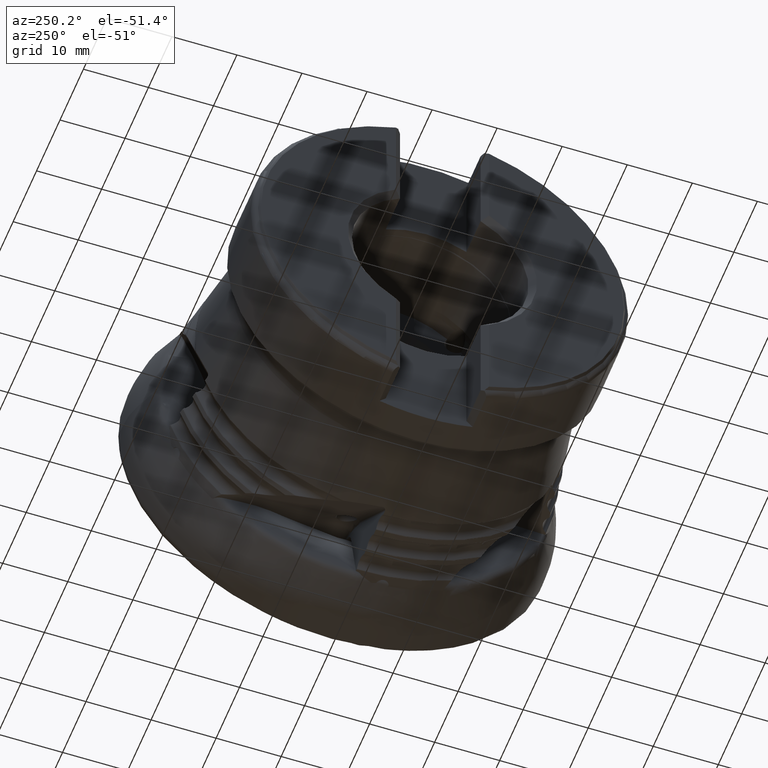
[diagram: clean part render]
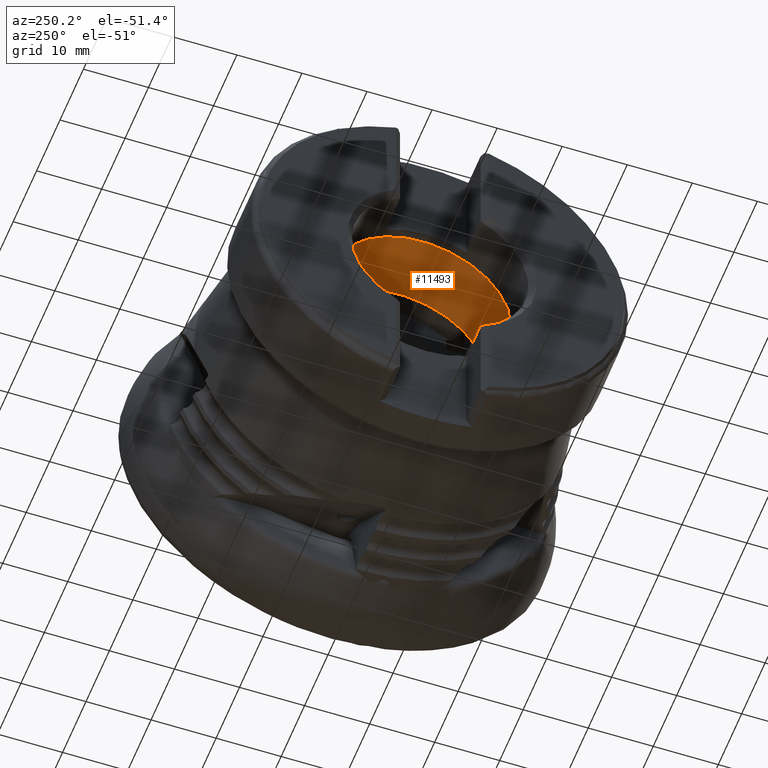
[diagram: same view with one face highlighted and labeled with its STEP entity id]
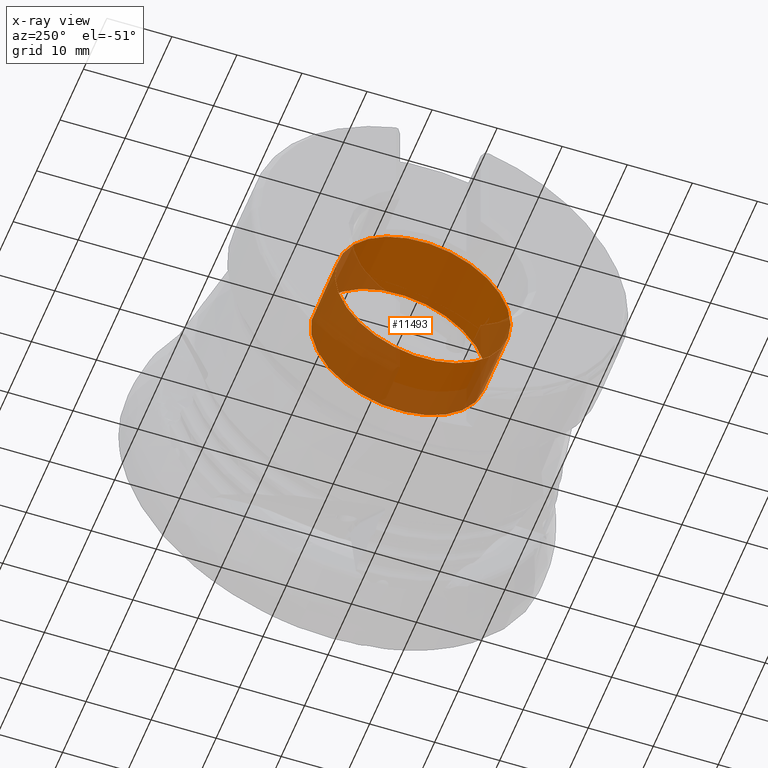
[diagram: x-ray of the same camera — body ghosted, the highlighted face saturated]
A machine part, auxiliary view. The second image highlights one B-rep face of the part: STEP entity #11493.
The next image is the same camera in x-ray: the body ghosted, the highlighted face saturated — about 51% of this face is hidden behind the body in this view.
In plain terms, the highlighted cylindrical surface (bore or boss wall) has radius 13.5 mm, axis along (-1, -0, -0).
Its self-contained STEP definition (entity closure, byte-faithful):
#343 = DIRECTION ( 'NONE',  ( -1.000000000000000000, -8.918127540765139200E-019, 0.0000000000000000000 ) ) ;
#736 = DIRECTION ( 'NONE',  ( 0.0000000000000000000, -1.000000000000000000, 0.0000000000000000000 ) ) ;
#772 = CARTESIAN_POINT ( 'NONE',  ( -30.19372220480102000, 5.860457060852806600, 12.16162172729856600 ) ) ;
#906 = EDGE_CURVE ( 'NONE', #11417, #4085, #8367, .T. ) ;
#941 = VERTEX_POINT ( 'NONE', #9106 ) ;
#957 = EDGE_LOOP ( 'NONE', ( #2441 ) ) ;
#1155 = CARTESIAN_POINT ( 'NONE',  ( -30.21015623862490800, -9.887653744841088600, 9.192007366032889600 ) ) ;
#1407 = CARTESIAN_POINT ( 'NONE',  ( -30.19372220480102000, 2.407212538242411900, -13.28364888860468400 ) ) ;
#1442 = VERTEX_POINT ( 'NONE', #12554 ) ;
#2101 = CARTESIAN_POINT ( 'NONE',  ( -30.19372220480101300, -11.88963125229506400, -6.394268424491458300 ) ) ;
#2404 = CARTESIAN_POINT ( 'NONE',  ( -30.21024652609022000, 13.39037170536719800, -1.719677960842389300 ) ) ;
#2441 = ORIENTED_EDGE ( 'NONE', *, *, #7890, .F. ) ;
#2588 = DIRECTION ( 'NONE',  ( -1.000000000000000000, -0.0000000000000000000, -0.0000000000000000000 ) ) ;
#2903 = ORIENTED_EDGE ( 'NONE', *, *, #9368, .F. ) ;
#3510 = CARTESIAN_POINT ( 'NONE',  ( -30.19372220480102000, -11.75167477960347500, -6.644406660826201800 ) ) ;
#3581 = AXIS2_PLACEMENT_3D ( 'NONE', #5825, #13532, #6914 ) ;
#3661 = CARTESIAN_POINT ( 'NONE',  ( -30.19372220480102000, 2.687739032385168900, -13.22974145226554500 ) ) ;
#3692 = EDGE_LOOP ( 'NONE', ( #14071, #5840, #8688, #12606, #10035, #5234, #9245, #13024, #8100, #2903 ) ) ;
#3814 = DIRECTION ( 'NONE',  ( -1.000000000000000000, -8.918127540765139200E-019, 0.0000000000000000000 ) ) ;
#3831 = EDGE_CURVE ( 'NONE', #3843, #4085, #5087, .T. ) ;
#3843 = VERTEX_POINT ( 'NONE', #6683 ) ;
#4047 = EDGE_CURVE ( 'NONE', #6264, #12348, #11792, .T. ) ;
#4085 = VERTEX_POINT ( 'NONE', #11494 ) ;
#4467 = DIRECTION ( 'NONE',  ( -1.000000000000000000, -8.918127540765139200E-019, 0.0000000000000000000 ) ) ;
#4468 = CIRCLE ( 'NONE', #3581, 13.50000000000000000 ) ;
#4714 = CARTESIAN_POINT ( 'NONE',  ( -27.90525917703945800, 0.0000000000000000000, 0.0000000000000000000 ) ) ;
#4784 = FACE_OUTER_BOUND ( 'NONE', #957, .T. ) ;
#4789 = EDGE_CURVE ( 'NONE', #5907, #11464, #11052, .T. ) ;
#4843 = DIRECTION ( 'NONE',  ( -1.000000000000000000, -8.918127540765139200E-019, 0.0000000000000000000 ) ) ;
#5068 = AXIS2_PLACEMENT_3D ( 'NONE', #13930, #7305, #736 ) ;
#5087 = CIRCLE ( 'NONE', #10570, 13.50000000000000000 ) ;
#5137 = AXIS2_PLACEMENT_3D ( 'NONE', #11429, #4843, #12551 ) ;
#5234 = ORIENTED_EDGE ( 'NONE', *, *, #3831, .F. ) ;
#5364 = CARTESIAN_POINT ( 'NONE',  ( -30.21015623862492200, -11.79757154494960000, -6.563231036377470900 ) ) ;
#5566 = CARTESIAN_POINT ( 'NONE',  ( -30.19372220480102000, -9.755408765887031200, 9.331773669054262800 ) ) ;
#5729 = CARTESIAN_POINT ( 'NONE',  ( -30.19372220480103400, 13.37737041907370500, -1.815478083285987800 ) ) ;
#5825 = CARTESIAN_POINT ( 'NONE',  ( -30.19372220480102000, 2.106262707738703400E-017, 0.0000000000000000000 ) ) ;
#5840 = ORIENTED_EDGE ( 'NONE', *, *, #4047, .F. ) ;
#5907 = VERTEX_POINT ( 'NONE', #10880 ) ;
#6093 = CIRCLE ( 'NONE', #7181, 13.50000000000000000 ) ;
#6264 = VERTEX_POINT ( 'NONE', #11873 ) ;
#6594 = VERTEX_POINT ( 'NONE', #11527 ) ;
#6683 = CARTESIAN_POINT ( 'NONE',  ( -30.19372220480102000, 5.860457060852806600, 12.16162172729856600 ) ) ;
#6898 = CARTESIAN_POINT ( 'NONE',  ( -30.19372220480102000, 2.106262707738703400E-017, 0.0000000000000000000 ) ) ;
#6914 = DIRECTION ( 'NONE',  ( 0.0000000000000000000, 1.000000000000000000, 0.0000000000000000000 ) ) ;
#7181 = AXIS2_PLACEMENT_3D ( 'NONE', #6898, #343, #8022 ) ;
#7305 = DIRECTION ( 'NONE',  ( 1.000000000000000000, 8.918127540765139200E-019, -0.0000000000000000000 ) ) ;
#7354 = CARTESIAN_POINT ( 'NONE',  ( -30.21023832166520500, 5.773406591096591700, 12.20356971347760900 ) ) ;
#7890 = EDGE_CURVE ( 'NONE', #1442, #1442, #13336, .T. ) ;
#7927 = EDGE_CURVE ( 'NONE', #941, #3843, #10320, .T. ) ;
#7973 = CARTESIAN_POINT ( 'NONE',  ( -30.21023832166520900, 2.502294255271913400, -13.26641853997750300 ) ) ;
#7984 = CARTESIAN_POINT ( 'NONE',  ( -30.19372220480102000, -9.755408765887031200, 9.331773669054262800 ) ) ;
#8022 = DIRECTION ( 'NONE',  ( 0.0000000000000000000, 1.000000000000000000, 8.881784197001252300E-016 ) ) ;
#8100 = ORIENTED_EDGE ( 'NONE', *, *, #4789, .F. ) ;
#8367 = B_SPLINE_CURVE_WITH_KNOTS ( 'NONE', 3,
 ( #5729, #2404, #11223, #13438 ),
 .UNSPECIFIED., .F., .F.,
 ( 4, 4 ),
 ( 0.0000000000000000000, 1.000000000000000000 ),
 .UNSPECIFIED. ) ;
#8489 = EDGE_CURVE ( 'NONE', #12348, #6594, #9698, .T. ) ;
#8581 = AXIS2_PLACEMENT_3D ( 'NONE', #4714, #2588, #12416 ) ;
#8667 = CARTESIAN_POINT ( 'NONE',  ( -30.21023832166522300, -11.84386235053866100, -6.479372040508125400 ) ) ;
#8688 = ORIENTED_EDGE ( 'NONE', *, *, #13713, .F. ) ;
#8831 = CARTESIAN_POINT ( 'NONE',  ( -30.19372220480102300, -9.950673470955159400, 9.123272300793679800 ) ) ;
#9106 = CARTESIAN_POINT ( 'NONE',  ( -30.19372220480102300, 5.601820363603870600, 12.28289903133266800 ) ) ;
#9245 = ORIENTED_EDGE ( 'NONE', *, *, #7927, .F. ) ;
#9368 = EDGE_CURVE ( 'NONE', #6594, #5907, #4468, .T. ) ;
#9467 = EDGE_CURVE ( 'NONE', #11417, #11501, #10325, .T. ) ;
#9493 = AXIS2_PLACEMENT_3D ( 'NONE', #10400, #3814, #11515 ) ;
#9528 = CARTESIAN_POINT ( 'NONE',  ( -30.21015623862490800, 5.686665461647706400, 12.24420401342512900 ) ) ;
#9698 = B_SPLINE_CURVE_WITH_KNOTS ( 'NONE', 3,
 ( #13063, #5364, #8667, #2101 ),
 .UNSPECIFIED., .F., .F.,
 ( 4, 4 ),
 ( 0.0000000000000000000, 1.000000000000000000 ),
 .UNSPECIFIED. ) ;
#10035 = ORIENTED_EDGE ( 'NONE', *, *, #906, .T. ) ;
#10294 = CYLINDRICAL_SURFACE ( 'NONE', #8581, 13.50000000000000000 ) ;
#10320 = B_SPLINE_CURVE_WITH_KNOTS ( 'NONE', 3,
 ( #10650, #9528, #7354, #772 ),
 .UNSPECIFIED., .F., .F.,
 ( 4, 4 ),
 ( 0.0000000000000000000, 1.000000000000000000 ),
 .UNSPECIFIED. ) ;
#10325 = CIRCLE ( 'NONE', #9493, 13.50000000000000000 ) ;
#10400 = CARTESIAN_POINT ( 'NONE',  ( -30.19372220480102000, 2.106262707738703400E-017, 0.0000000000000000000 ) ) ;
#10570 = AXIS2_PLACEMENT_3D ( 'NONE', #11068, #4467, #12188 ) ;
#10650 = CARTESIAN_POINT ( 'NONE',  ( -30.19372220480102300, 5.601820363603870600, 12.28289903133266800 ) ) ;
#10880 = CARTESIAN_POINT ( 'NONE',  ( -30.19372220480102300, -9.950673470955159400, 9.123272300793679800 ) ) ;
#11052 = B_SPLINE_CURVE_WITH_KNOTS ( 'NONE', 3,
 ( #8831, #1155, #12173, #5566 ),
 .UNSPECIFIED., .F., .F.,
 ( 4, 4 ),
 ( 0.0000000000000000000, 1.000000000000000000 ),
 .UNSPECIFIED. ) ;
#11068 = CARTESIAN_POINT ( 'NONE',  ( -30.19372220480102000, 2.106262707738703400E-017, 0.0000000000000000000 ) ) ;
#11223 = CARTESIAN_POINT ( 'NONE',  ( -30.21024652609017400, 13.40214814285926600, -1.625182132812416700 ) ) ;
#11417 = VERTEX_POINT ( 'NONE', #13256 ) ;
#11429 = CARTESIAN_POINT ( 'NONE',  ( -30.19372220480102000, 2.106262707738703400E-017, 0.0000000000000000000 ) ) ;
#11464 = VERTEX_POINT ( 'NONE', #7984 ) ;
#11493 = ADVANCED_FACE ( 'NONE', ( #13573, #4784 ), #10294, .F. ) ;
#11494 = CARTESIAN_POINT ( 'NONE',  ( -30.19372220480102300, 13.41278885453360200, -1.532023219047012900 ) ) ;
#11501 = VERTEX_POINT ( 'NONE', #3661 ) ;
#11515 = DIRECTION ( 'NONE',  ( 0.0000000000000000000, 1.000000000000000000, 0.0000000000000000000 ) ) ;
#11527 = CARTESIAN_POINT ( 'NONE',  ( -30.19372220480101300, -11.88963125229506400, -6.394268424491458300 ) ) ;
#11792 = CIRCLE ( 'NONE', #5137, 13.50000000000000000 ) ;
#11873 = CARTESIAN_POINT ( 'NONE',  ( -30.19372220480102000, 2.407212538242411900, -13.28364888860468400 ) ) ;
#12173 = CARTESIAN_POINT ( 'NONE',  ( -30.21023832166521200, -9.822203745979933800, 9.261946393187740200 ) ) ;
#12188 = DIRECTION ( 'NONE',  ( 0.0000000000000000000, 1.000000000000000000, 0.0000000000000000000 ) ) ;
#12197 = B_SPLINE_CURVE_WITH_KNOTS ( 'NONE', 3,
 ( #13464, #12366, #7973, #1407 ),
 .UNSPECIFIED., .F., .F.,
 ( 4, 4 ),
 ( 0.0000000000000000000, 1.000000000000000000 ),
 .UNSPECIFIED. ) ;
#12348 = VERTEX_POINT ( 'NONE', #3510 ) ;
#12366 = CARTESIAN_POINT ( 'NONE',  ( -30.21015623862490400, 2.596353545353714300, -13.24830722253232600 ) ) ;
#12416 = DIRECTION ( 'NONE',  ( 0.0000000000000000000, 0.0000000000000000000, 1.000000000000000000 ) ) ;
#12551 = DIRECTION ( 'NONE',  ( 0.0000000000000000000, 1.000000000000000000, 0.0000000000000000000 ) ) ;
#12554 = CARTESIAN_POINT ( 'NONE',  ( -40.48383060561089800, -13.50000000000000000, 0.0000000000000000000 ) ) ;
#12606 = ORIENTED_EDGE ( 'NONE', *, *, #9467, .F. ) ;
#13024 = ORIENTED_EDGE ( 'NONE', *, *, #14219, .F. ) ;
#13063 = CARTESIAN_POINT ( 'NONE',  ( -30.19372220480102000, -11.75167477960347500, -6.644406660826201800 ) ) ;
#13256 = CARTESIAN_POINT ( 'NONE',  ( -30.19372220480103400, 13.37737041907370500, -1.815478083285987800 ) ) ;
#13336 = CIRCLE ( 'NONE', #5068, 13.50000000000000000 ) ;
#13438 = CARTESIAN_POINT ( 'NONE',  ( -30.19372220480102300, 13.41278885453360200, -1.532023219047012900 ) ) ;
#13464 = CARTESIAN_POINT ( 'NONE',  ( -30.19372220480102000, 2.687739032385168900, -13.22974145226554500 ) ) ;
#13532 = DIRECTION ( 'NONE',  ( -1.000000000000000000, -8.918127540765139200E-019, 0.0000000000000000000 ) ) ;
#13573 = FACE_OUTER_BOUND ( 'NONE', #3692, .T. ) ;
#13713 = EDGE_CURVE ( 'NONE', #11501, #6264, #12197, .T. ) ;
#13930 = CARTESIAN_POINT ( 'NONE',  ( -40.48383060561089800, 1.188577716471490400E-017, 0.0000000000000000000 ) ) ;
#14071 = ORIENTED_EDGE ( 'NONE', *, *, #8489, .F. ) ;
#14219 = EDGE_CURVE ( 'NONE', #11464, #941, #6093, .T. ) ;